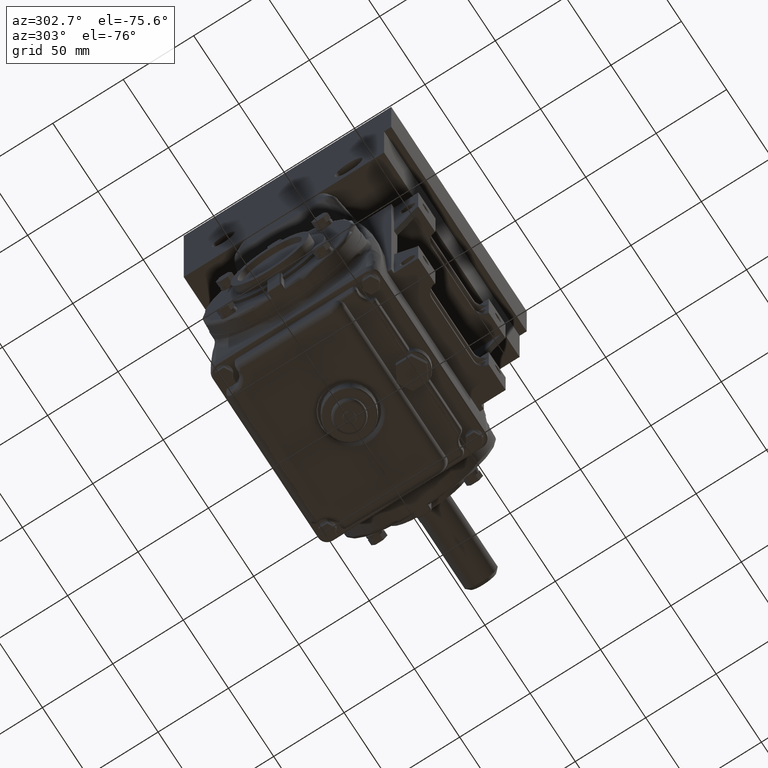
[diagram: clean part render]
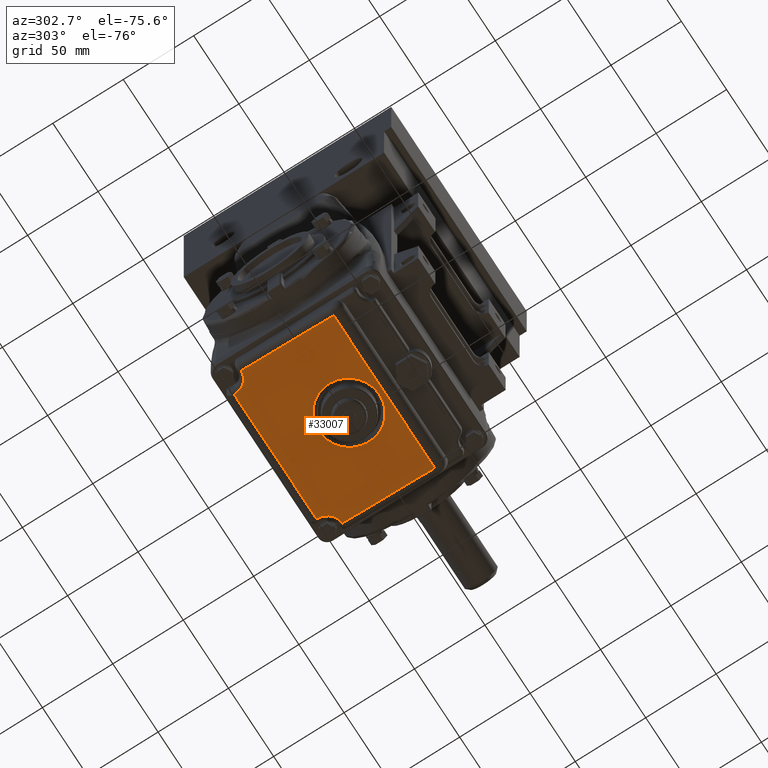
[diagram: same view with one face highlighted and labeled with its STEP entity id]
A machine part, auxiliary view. The second image highlights one B-rep face of the part: STEP entity #33007.
In plain terms, the highlighted planar face has unit normal (0, -0.0837, 0.9965).
Its self-contained STEP definition (entity closure, byte-faithful):
#12410 = CARTESIAN_POINT ( 'NONE',  ( 2.199999999999999700, -0.9748966470003073100, -3.268947857774851400 ) ) ;
#12694 = CARTESIAN_POINT ( 'NONE',  ( -2.199999999999998800, -0.9748966470003073100, -3.268947857774851400 ) ) ;
#15728 = CARTESIAN_POINT ( 'NONE',  ( 1.040915400749020500E-016, 0.8583677843332311300, -3.115004342326727300 ) ) ;
#16259 = CARTESIAN_POINT ( 'NONE',  ( 1.040915400749020500E-016, 0.8583677843332311300, -3.115004342326727300 ) ) ;
#16260 = CARTESIAN_POINT ( 'NONE',  ( 1.699999999999999700, 0.8583677843332309100, -3.115004342326727300 ) ) ;
#16263 = CARTESIAN_POINT ( 'NONE',  ( 1.699999999999999700, -0.8416322156667692700, -3.257757330814833500 ) ) ;
#16265 = CARTESIAN_POINT ( 'NONE',  ( 0.0000000000000000000, -0.8416322156667692700, -3.257757330814833100 ) ) ;
#16277 =( BOUNDED_CURVE ( )  B_SPLINE_CURVE ( 3, ( #16265, #16263, #16260, #16259 ),
 .UNSPECIFIED., .F., .F. ) 
 B_SPLINE_CURVE_WITH_KNOTS ( ( 4, 4 ),
 ( 0.0000000000000000000, 3.141592653589793100 ),
 .UNSPECIFIED. ) 
 CURVE ( )  GEOMETRIC_REPRESENTATION_ITEM ( )  RATIONAL_B_SPLINE_CURVE ( ( 1.000000000000000000, 0.3333333333333333700, 0.3333333333333333700, 1.000000000000000000 ) ) 
 REPRESENTATION_ITEM ( '' )  );
#16283 = CARTESIAN_POINT ( 'NONE',  ( 0.0000000000000000000, -0.8416322156667692700, -3.257757330814833100 ) ) ;
#24626 = VERTEX_POINT ( 'NONE', #12410 ) ;
#24656 = VERTEX_POINT ( 'NONE', #12694 ) ;
#31168 = VERTEX_POINT ( 'NONE', #15728 ) ;
#31273 = EDGE_CURVE ( 'NONE', #31274, #31168, #16277, .T. ) ;
#31274 = VERTEX_POINT ( 'NONE', #16283 ) ;
#33007 = ADVANCED_FACE ( 'NONE', ( #37643, #37642 ), #37841, .F. ) ;
#33008 = EDGE_LOOP ( 'NONE', ( #33009, #33067 ) ) ;
#33009 = ORIENTED_EDGE ( 'NONE', *, *, #31273, .T. ) ;
#33055 = VERTEX_POINT ( 'NONE', #37965 ) ;
#33056 = ORIENTED_EDGE ( 'NONE', *, *, #33057, .T. ) ;
#33057 = EDGE_CURVE ( 'NONE', #33055, #24626, #37964, .T. ) ;
#33058 = ORIENTED_EDGE ( 'NONE', *, *, #33059, .T. ) ;
#33059 = EDGE_CURVE ( 'NONE', #24626, #24656, #37959, .T. ) ;
#33067 = ORIENTED_EDGE ( 'NONE', *, *, #33068, .T. ) ;
#33068 = EDGE_CURVE ( 'NONE', #31168, #31274, #38033, .T. ) ;
#33069 = EDGE_LOOP ( 'NONE', ( #33070, #33073, #33076, #33079, #33056, #33058 ) ) ;
#33070 = ORIENTED_EDGE ( 'NONE', *, *, #33071, .T. ) ;
#33071 = EDGE_CURVE ( 'NONE', #24656, #33072, #38055, .T. ) ;
#33072 = VERTEX_POINT ( 'NONE', #38051 ) ;
#33073 = ORIENTED_EDGE ( 'NONE', *, *, #33074, .T. ) ;
#33074 = EDGE_CURVE ( 'NONE', #33072, #33075, #38048, .T. ) ;
#33075 = VERTEX_POINT ( 'NONE', #38050 ) ;
#33076 = ORIENTED_EDGE ( 'NONE', *, *, #33077, .F. ) ;
#33077 = EDGE_CURVE ( 'NONE', #33078, #33075, #38049, .T. ) ;
#33078 = VERTEX_POINT ( 'NONE', #38040 ) ;
#33079 = ORIENTED_EDGE ( 'NONE', *, *, #33080, .T. ) ;
#33080 = EDGE_CURVE ( 'NONE', #33078, #33055, #38037, .T. ) ;
#37642 = FACE_OUTER_BOUND ( 'NONE', #33069, .T. ) ;
#37643 = FACE_BOUND ( 'NONE', #33008, .T. ) ;
#37837 = DIRECTION ( 'NONE',  ( 0.0000000000000000000, -0.9964928592495050400, -0.08367784333230840500 ) ) ;
#37838 = DIRECTION ( 'NONE',  ( 0.0000000000000000000, -0.08367784333230840500, 0.9964928592495050400 ) ) ;
#37839 = CARTESIAN_POINT ( 'NONE',  ( 2.399999999999999900, -0.9748966470003073100, -3.268947857774851400 ) ) ;
#37840 = AXIS2_PLACEMENT_3D ( 'NONE', #37839, #37838, #37837 ) ;
#37841 = PLANE ( 'NONE',  #37840 ) ;
#37956 = DIRECTION ( 'NONE',  ( -1.000000000000000000, -0.0000000000000000000, -0.0000000000000000000 ) ) ;
#37957 = VECTOR ( 'NONE', #37956, 39.37007874015748100 ) ;
#37958 = CARTESIAN_POINT ( 'NONE',  ( 2.399999999999999900, -0.9748966470003073100, -3.268947857774851400 ) ) ;
#37959 = LINE ( 'NONE', #37958, #37957 ) ;
#37961 = DIRECTION ( 'NONE',  ( -0.0000000000000000000, -0.9964928592495050400, -0.08367784333230840500 ) ) ;
#37962 = VECTOR ( 'NONE', #37961, 39.37007874015748100 ) ;
#37963 = CARTESIAN_POINT ( 'NONE',  ( 2.199999999999999700, -0.9748966470003073100, -3.268947857774851400 ) ) ;
#37964 = LINE ( 'NONE', #37963, #37962 ) ;
#37965 = CARTESIAN_POINT ( 'NONE',  ( 2.199999999999999700, 1.609103715621311900, -3.051963284822742500 ) ) ;
#38012 = CARTESIAN_POINT ( 'NONE',  ( 0.0000000000000000000, -0.8416322156667692700, -3.257757330814833100 ) ) ;
#38013 = CARTESIAN_POINT ( 'NONE',  ( -1.699999999999999700, -0.8416322156667692700, -3.257757330814833500 ) ) ;
#38014 = CARTESIAN_POINT ( 'NONE',  ( -1.699999999999999700, 0.8583677843332313500, -3.115004342326727300 ) ) ;
#38015 = CARTESIAN_POINT ( 'NONE',  ( 1.040915400749020500E-016, 0.8583677843332311300, -3.115004342326727300 ) ) ;
#38033 =( BOUNDED_CURVE ( )  B_SPLINE_CURVE ( 3, ( #38015, #38014, #38013, #38012 ),
 .UNSPECIFIED., .F., .F. ) 
 B_SPLINE_CURVE_WITH_KNOTS ( ( 4, 4 ),
 ( 3.141592653589793100, 6.283185307179586200 ),
 .UNSPECIFIED. ) 
 CURVE ( )  GEOMETRIC_REPRESENTATION_ITEM ( )  RATIONAL_B_SPLINE_CURVE ( ( 1.000000000000000000, 0.3333333333333333700, 0.3333333333333333700, 1.000000000000000000 ) ) 
 REPRESENTATION_ITEM ( '' )  );
#38037 =( BOUNDED_CURVE ( )  B_SPLINE_CURVE ( 3, ( #38076, #38075, #38074, #38073 ),
 .UNSPECIFIED., .F., .T. ) 
 B_SPLINE_CURVE_WITH_KNOTS ( ( 4, 4 ),
 ( 1.492203007413425400, 3.082735147642711800 ),
 .UNSPECIFIED. ) 
 CURVE ( )  GEOMETRIC_REPRESENTATION_ITEM ( )  RATIONAL_B_SPLINE_CURVE ( ( 1.000000000000000000, 0.8000632023228929600, 0.8000632023228929600, 1.000000000000000000 ) ) 
 REPRESENTATION_ITEM ( '' )  );
#38040 = CARTESIAN_POINT ( 'NONE',  ( 1.801311917834957900, 2.066735568666461500, -3.013534864440656800 ) ) ;
#38041 = DIRECTION ( 'NONE',  ( -1.000000000000000000, -0.0000000000000000000, -0.0000000000000000000 ) ) ;
#38042 = VECTOR ( 'NONE', #38041, 39.37007874015748100 ) ;
#38043 = CARTESIAN_POINT ( 'NONE',  ( 2.399999999999999900, 2.066735568666461500, -3.013534864440656800 ) ) ;
#38044 = CARTESIAN_POINT ( 'NONE',  ( -1.801311917834956600, 2.066735568666461500, -3.013534864440656800 ) ) ;
#38045 = CARTESIAN_POINT ( 'NONE',  ( -1.781458266983582600, 1.814643455831181700, -3.034703630606255100 ) ) ;
#38046 = CARTESIAN_POINT ( 'NONE',  ( -1.947565178290712400, 1.623978580141165900, -3.050714207550056800 ) ) ;
#38047 = CARTESIAN_POINT ( 'NONE',  ( -2.199999999999999700, 1.609103715621311700, -3.051963284822742500 ) ) ;
#38048 =( BOUNDED_CURVE ( )  B_SPLINE_CURVE ( 3, ( #38047, #38046, #38045, #38044 ),
 .UNSPECIFIED., .F., .T. ) 
 B_SPLINE_CURVE_WITH_KNOTS ( ( 4, 4 ),
 ( 3.200450159536874400, 4.790982299766160900 ),
 .UNSPECIFIED. ) 
 CURVE ( )  GEOMETRIC_REPRESENTATION_ITEM ( )  RATIONAL_B_SPLINE_CURVE ( ( 1.000000000000000000, 0.8000632023228929600, 0.8000632023228929600, 1.000000000000000000 ) ) 
 REPRESENTATION_ITEM ( '' )  );
#38049 = LINE ( 'NONE', #38043, #38042 ) ;
#38050 = CARTESIAN_POINT ( 'NONE',  ( -1.801311917834956600, 2.066735568666461500, -3.013534864440656800 ) ) ;
#38051 = CARTESIAN_POINT ( 'NONE',  ( -2.199999999999999700, 1.609103715621311700, -3.051963284822742500 ) ) ;
#38052 = DIRECTION ( 'NONE',  ( 0.0000000000000000000, 0.9964928592495050400, 0.08367784333230840500 ) ) ;
#38053 = VECTOR ( 'NONE', #38052, 39.37007874015748100 ) ;
#38054 = CARTESIAN_POINT ( 'NONE',  ( -2.199999999999999700, 2.066735568666462800, -3.013534864440656800 ) ) ;
#38055 = LINE ( 'NONE', #38054, #38053 ) ;
#38073 = CARTESIAN_POINT ( 'NONE',  ( 2.199999999999999700, 1.609103715621311900, -3.051963284822742500 ) ) ;
#38074 = CARTESIAN_POINT ( 'NONE',  ( 1.947565178290712200, 1.623978580141166400, -3.050714207550056800 ) ) ;
#38075 = CARTESIAN_POINT ( 'NONE',  ( 1.781458266983581500, 1.814643455831181700, -3.034703630606255100 ) ) ;
#38076 = CARTESIAN_POINT ( 'NONE',  ( 1.801311917834957900, 2.066735568666461500, -3.013534864440656800 ) ) ;